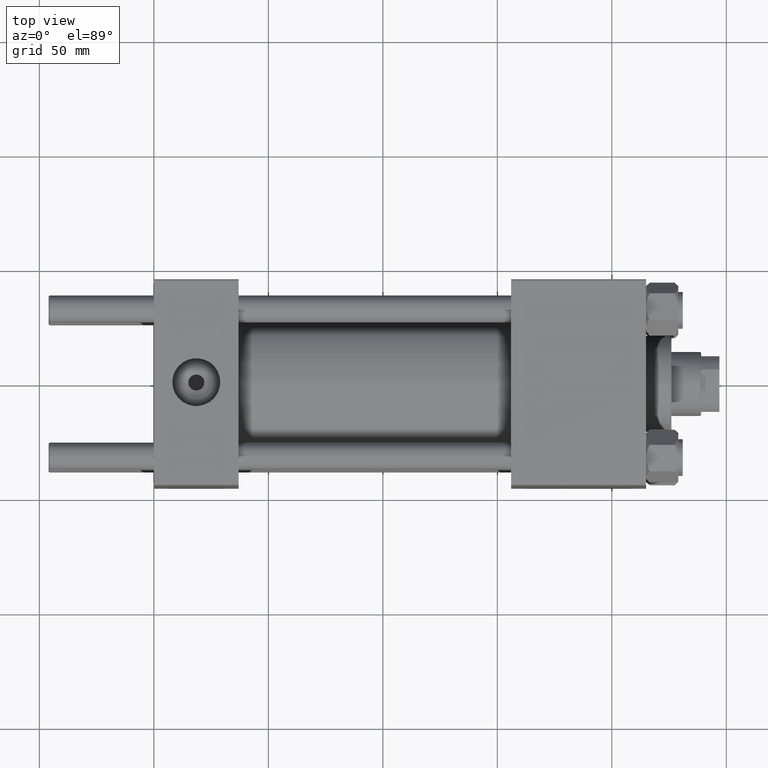
[diagram: clean part render]
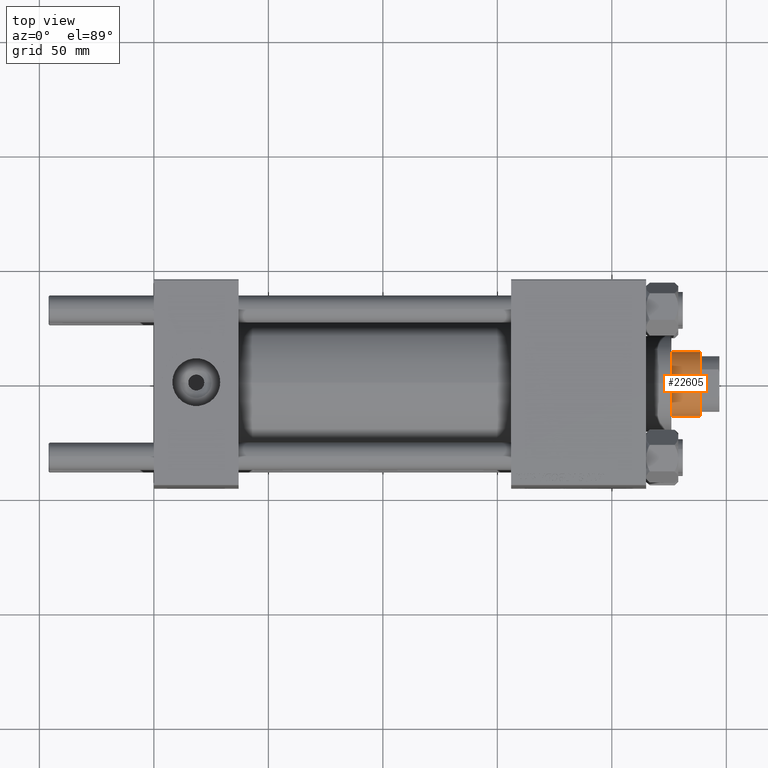
[diagram: same view with one face highlighted and labeled with its STEP entity id]
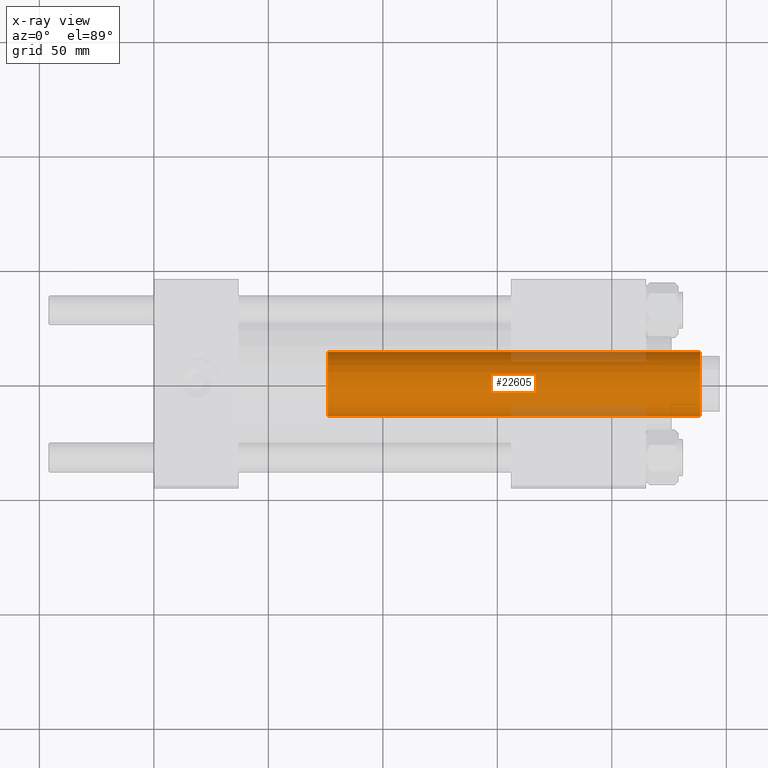
[diagram: x-ray of the same camera — body ghosted, the highlighted face saturated]
A machine part, top view. The second image highlights one B-rep face of the part: STEP entity #22605.
The next image is the same camera in x-ray: the body ghosted, the highlighted face saturated — about 12% of this face is hidden behind the body in this view.
In plain terms, the highlighted cylindrical surface (edge-blend (fillet) strip) has radius 14 mm, axis along (-1, 0, 0).
Its self-contained STEP definition (entity closure, byte-faithful):
#595 = CARTESIAN_POINT ( 'NONE',  ( -14.00000000000000178, 0.000000000000000000, 39.00000000000000000 ) ) ;
#3294 = DIRECTION ( 'NONE',  ( -0.000000000000000000, -0.000000000000000000, -1.000000000000000000 ) ) ;
#3785 = FACE_OUTER_BOUND ( 'NONE', #9423, .T. ) ;
#4688 = CARTESIAN_POINT ( 'NONE',  ( 0.000000000000000000, 0.000000000000000000, 201.5000000000000284 ) ) ;
#4976 = ORIENTED_EDGE ( 'NONE', *, *, #33515, .F. ) ;
#8662 = LINE ( 'NONE', #31188, #41683 ) ;
#9002 = ORIENTED_EDGE ( 'NONE', *, *, #44019, .T. ) ;
#9423 = EDGE_LOOP ( 'NONE', ( #4976, #23352, #9002, #26075 ) ) ;
#11122 = DIRECTION ( 'NONE',  ( -1.000000000000000000, 0.000000000000000000, 0.000000000000000000 ) ) ;
#11528 = CARTESIAN_POINT ( 'NONE',  ( 14.00000000000000178, 1.714505518806294835E-15, 202.0000000000000000 ) ) ;
#12462 = DIRECTION ( 'NONE',  ( -0.000000000000000000, -0.000000000000000000, -1.000000000000000000 ) ) ;
#15590 = DIRECTION ( 'NONE',  ( -0.000000000000000000, -0.000000000000000000, -1.000000000000000000 ) ) ;
#16872 = CIRCLE ( 'NONE', #26543, 14.00000000000000178 ) ;
#17293 = EDGE_CURVE ( 'NONE', #40947, #45003, #16872, .T. ) ;
#18923 = VERTEX_POINT ( 'NONE', #36390 ) ;
#19931 = VERTEX_POINT ( 'NONE', #49507 ) ;
#20132 = DIRECTION ( 'NONE',  ( 0.000000000000000000, 0.000000000000000000, -1.000000000000000000 ) ) ;
#20566 = LINE ( 'NONE', #11528, #34993 ) ;
#20934 = AXIS2_PLACEMENT_3D ( 'NONE', #4688, #20132, #32240 ) ;
#22152 = DIRECTION ( 'NONE',  ( 0.000000000000000000, 0.000000000000000000, 1.000000000000000000 ) ) ;
#22605 = ADVANCED_FACE ( 'NONE', ( #3785 ), #22767, .T. ) ;
#22767 = CYLINDRICAL_SURFACE ( 'NONE', #45171, 14.00000000000000178 ) ;
#23093 = EDGE_CURVE ( 'NONE', #18923, #19931, #48379, .T. ) ;
#23352 = ORIENTED_EDGE ( 'NONE', *, *, #23093, .T. ) ;
#26075 = ORIENTED_EDGE ( 'NONE', *, *, #17293, .T. ) ;
#26543 = AXIS2_PLACEMENT_3D ( 'NONE', #45137, #22152, #41102 ) ;
#26885 = CARTESIAN_POINT ( 'NONE',  ( 14.00000000000000178, 1.714505518806294835E-15, 39.00000000000000000 ) ) ;
#30352 = CARTESIAN_POINT ( 'NONE',  ( 0.000000000000000000, 0.000000000000000000, 202.0000000000000000 ) ) ;
#31188 = CARTESIAN_POINT ( 'NONE',  ( -14.00000000000000178, 0.000000000000000000, 202.0000000000000000 ) ) ;
#32240 = DIRECTION ( 'NONE',  ( 1.000000000000000000, 0.000000000000000000, 0.000000000000000000 ) ) ;
#33515 = EDGE_CURVE ( 'NONE', #18923, #45003, #20566, .T. ) ;
#34993 = VECTOR ( 'NONE', #15590, 1000.000000000000000 ) ;
#36390 = CARTESIAN_POINT ( 'NONE',  ( 14.00000000000000178, 1.714505518806294835E-15, 201.5000000000000284 ) ) ;
#40947 = VERTEX_POINT ( 'NONE', #595 ) ;
#41102 = DIRECTION ( 'NONE',  ( 1.000000000000000000, 0.000000000000000000, 0.000000000000000000 ) ) ;
#41683 = VECTOR ( 'NONE', #12462, 1000.000000000000000 ) ;
#44019 = EDGE_CURVE ( 'NONE', #19931, #40947, #8662, .T. ) ;
#45003 = VERTEX_POINT ( 'NONE', #26885 ) ;
#45137 = CARTESIAN_POINT ( 'NONE',  ( 0.000000000000000000, 0.000000000000000000, 39.00000000000000000 ) ) ;
#45171 = AXIS2_PLACEMENT_3D ( 'NONE', #30352, #3294, #11122 ) ;
#48379 = CIRCLE ( 'NONE', #20934, 14.00000000000000178 ) ;
#49507 = CARTESIAN_POINT ( 'NONE',  ( -14.00000000000000178, 0.000000000000000000, 201.5000000000000284 ) ) ;